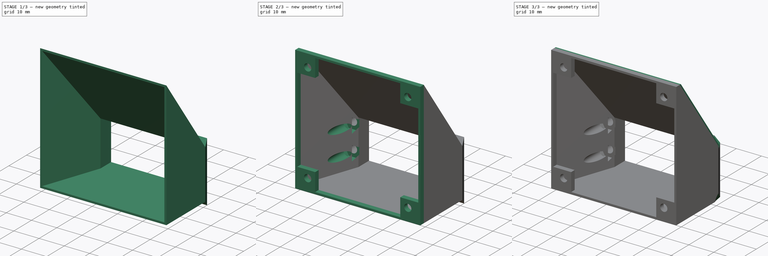
[diagram: build sequence overview — one tinted view per stage of 3, left to right]
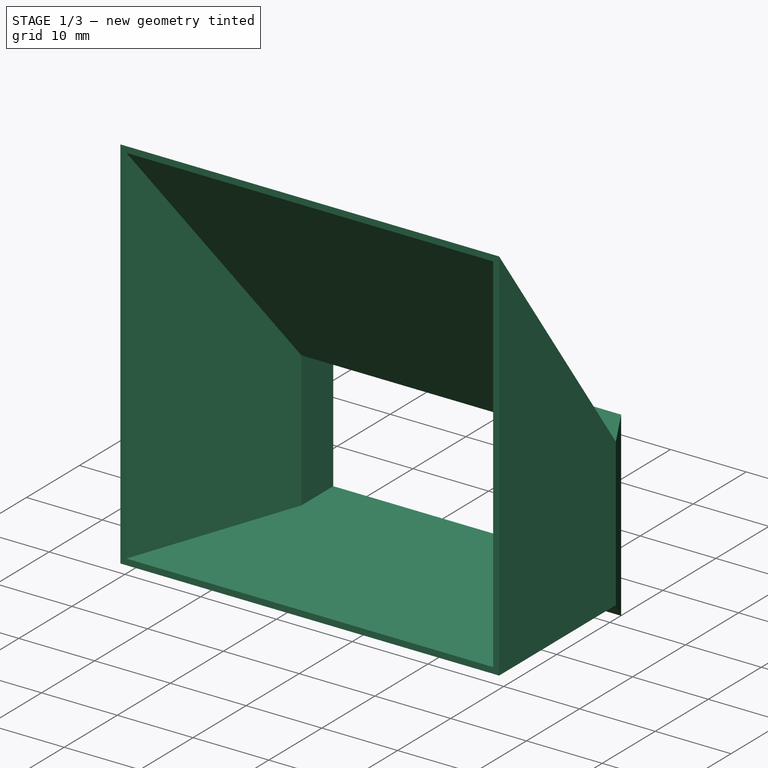
[diagram: stage 1 of 3 — iso view after this stage's code; geometry added in this stage tinted green]
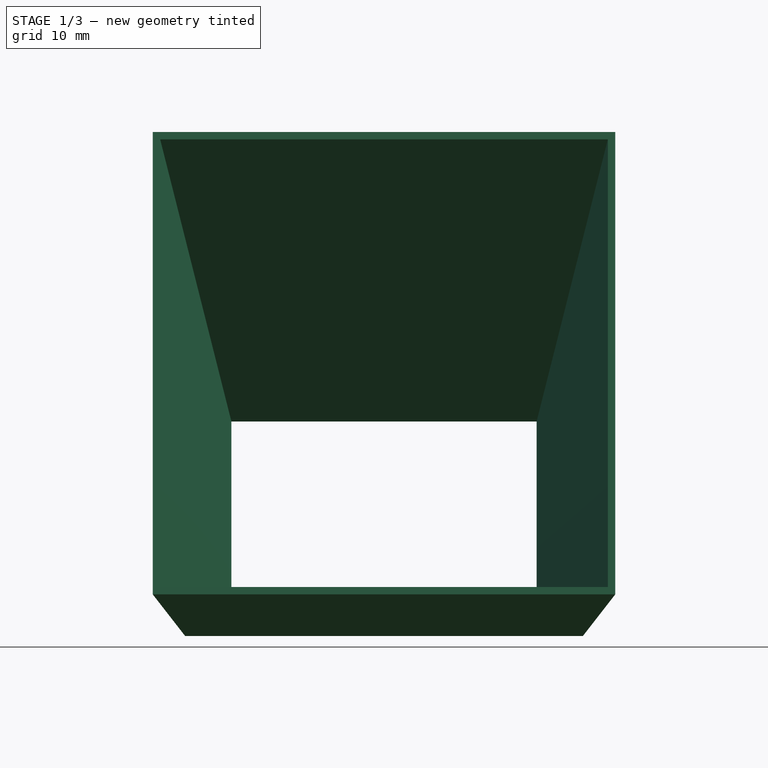
[diagram: stage 1 of 3 — front view after this stage's code; geometry added in this stage tinted green]
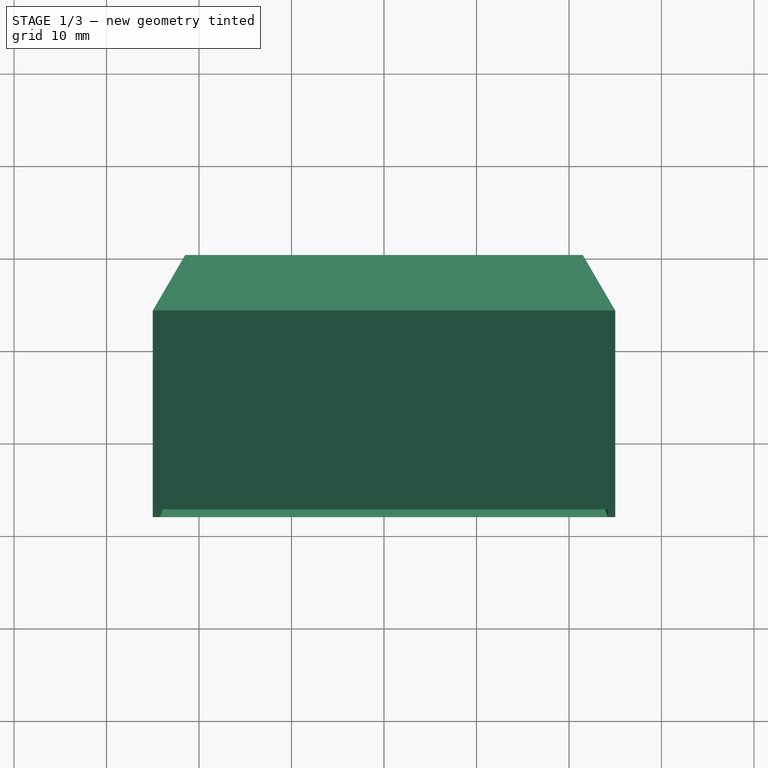
[diagram: stage 1 of 3 — top view after this stage's code; geometry added in this stage tinted green]
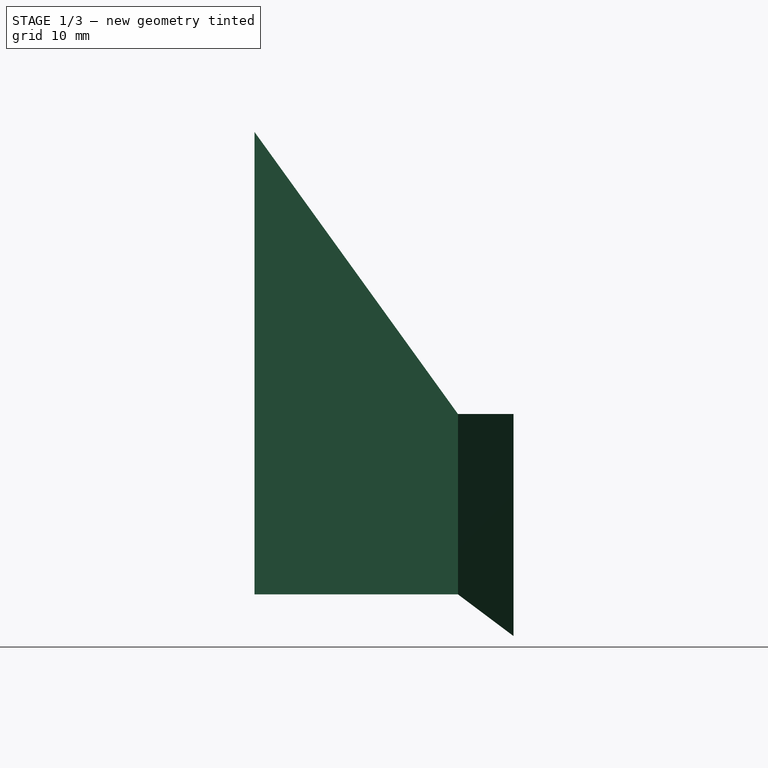
[diagram: stage 1 of 3 — right view after this stage's code; geometry added in this stage tinted green]
FCSTD DOCUMENT  (FreeCAD 0.18R14090 (Git))
Label: HotendClippingMainFan50x50_new
License: All rights reserved
LicenseURL: http://en.wikipedia.org/wiki/All_rights_reserved
objects: Sketcher::SketchObject×9, PartDesign::Plane×4, PartDesign::AdditiveLoft×3, PartDesign::Pocket×2, PartDesign::Pad×1, PartDesign::Chamfer×1, PartDesign::Body×1, App::Part×1
note: 27 computed .brp shape members not serialized (recipe doc carries the construction recipe); baked Part::Feature solids carry a one-line shape summary decoded from their .brp

FEATURE [Sketcher::SketchObject] Sketch  label="BaseSketch"
  MapMode = 5
  Placement = pos=(0,0,0) rot=(1,0,0;1.5708rad)
  Support = -> [XZ_Plane001]
  sketch-geometry (13):
    g0: LineSegment StartX=-16.5 StartY=8.95 StartZ=0 EndX=16.5 EndY=8.95 EndZ=0
    g1: LineSegment StartX=16.5 StartY=8.95 StartZ=0 EndX=16.5 EndY=-8.95 EndZ=0
    g2: LineSegment StartX=16.5 StartY=-8.95 StartZ=0 EndX=-16.5 EndY=-8.95 EndZ=0
    g3: LineSegment StartX=-16.5 StartY=-8.95 StartZ=0 EndX=-16.5 EndY=8.95 EndZ=0
    g4: Circle CenterX=-19 CenterY=6.75 CenterZ=0 NormalX=0 NormalY=0 NormalZ=1 AngleXU=0 Radius=1.6
    g5: Circle CenterX=-19 CenterY=-3.25 CenterZ=0 NormalX=0 NormalY=0 NormalZ=1 AngleXU=0 Radius=1.6
    g6: Circle CenterX=19 CenterY=6.75 CenterZ=0 NormalX=0 NormalY=0 NormalZ=1 AngleXU=0 Radius=1.6
    g7: Circle CenterX=19 CenterY=-3.25 CenterZ=0 NormalX=0 NormalY=0 NormalZ=1 AngleXU=0 Radius=1.6
    g8: LineSegment [constr] StartX=-19 StartY=6.75 StartZ=0 EndX=-19 EndY=-3.25 EndZ=0
    g9: LineSegment StartX=-21.5 StartY=9.75 StartZ=0 EndX=21.5 EndY=9.75 EndZ=0
    g10: LineSegment StartX=21.5 StartY=9.75 StartZ=0 EndX=21.5 EndY=-14.25 EndZ=0
    g11: LineSegment StartX=21.5 StartY=-14.25 StartZ=0 EndX=-21.5 EndY=-14.25 EndZ=0
    g12: LineSegment StartX=-21.5 StartY=-14.25 StartZ=0 EndX=-21.5 EndY=9.75 EndZ=0
  constraints (33):
    c: Coincident(g0,g1)
    c: Coincident(g1,g2)
    c: Coincident(g2,g3)
    c: Coincident(g3,g0)
    c: Horizontal(g2)
    c: Vertical(g1)
    c: Symmetric(g2,g0,g-1)
    c: Symmetric(g0,g0,g-2)
    c: Distance(g2) = 33
    c: Distance(g3) = 17.9
    c: Equal(g4,g6)
    c: Equal(g6,g7)
    c: Equal(g7,g5)
    c: Symmetric(g4,g6,g-2)
    c: Symmetric(g7,g5,g-2)
    c: Distance(g6,g4) = 38
    c: Coincident(g8,g4)
    c: Coincident(g8,g5)
    c: Vertical(g8)
    c: Distance(g8) = 10
    c: Coincident(g9,g10)
    c: Coincident(g10,g11)
    c: Coincident(g11,g12)
    c: Coincident(g12,g9)
    c: Horizontal(g11)
    c: Vertical(g10)
    c: Vertical(g12)
    c: Distance(g9) = 43
    c: Symmetric(g9,g9,g-2)
    c: Distance(g12) = 24
    c: Distance(g4,g9) = 3
    c: Distance(g0,g9) = 0.8
    c: Radius(g4) = 1.6
FEATURE [PartDesign::Plane] DatumPlane  label="Node1Plane"
  AttachmentOffset = pos=(0,0,6) rot=(0,0,1;0rad)
  MapMode = 5
  Placement = pos=(0,-6,-1e-12) rot=(1,0,0;1.5708rad)
  Support = -> [XZ_Plane001]
FEATURE [Sketcher::SketchObject] Sketch001  label="Node1Sketch"
  MapMode = 5
  Placement = pos=(0,-6,-1e-12) rot=(1,0,0;1.5708rad)
  Support = -> [DatumPlane]
  sketch-geometry (13):
    g0: LineSegment StartX=-16.5 StartY=8.95 StartZ=0 EndX=16.5 EndY=8.95 EndZ=0
    g1: LineSegment StartX=16.5 StartY=8.95 StartZ=0 EndX=16.5 EndY=-8.95 EndZ=0
    g2: LineSegment StartX=16.5 StartY=-8.95 StartZ=0 EndX=-16.5 EndY=-8.95 EndZ=0
    g3: LineSegment StartX=-16.5 StartY=-8.95 StartZ=0 EndX=-16.5 EndY=8.95 EndZ=0
    g4: Circle CenterX=-19 CenterY=6.75 CenterZ=0 NormalX=0 NormalY=0 NormalZ=1 AngleXU=0 Radius=1.6
    g5: Circle CenterX=-19 CenterY=-3.25 CenterZ=0 NormalX=0 NormalY=0 NormalZ=1 AngleXU=0 Radius=1.6
    g6: Circle CenterX=19 CenterY=6.75 CenterZ=0 NormalX=0 NormalY=0 NormalZ=1 AngleXU=0 Radius=1.6
    g7: Circle CenterX=19 CenterY=-3.25 CenterZ=0 NormalX=0 NormalY=0 NormalZ=1 AngleXU=0 Radius=1.6
    g8: LineSegment [constr] StartX=-19 StartY=6.75 StartZ=0 EndX=-19 EndY=-3.25 EndZ=0
    g9: LineSegment StartX=-25 StartY=9.75 StartZ=0 EndX=25 EndY=9.75 EndZ=0
    g10: LineSegment StartX=25 StartY=9.75 StartZ=0 EndX=25 EndY=-9.75 EndZ=0
    g11: LineSegment StartX=25 StartY=-9.75 StartZ=0 EndX=-25 EndY=-9.75 EndZ=0
    g12: LineSegment StartX=-25 StartY=-9.75 StartZ=0 EndX=-25 EndY=9.75 EndZ=0
  constraints (33):
    c: Coincident(g0,g1)
    c: Coincident(g1,g2)
    c: Coincident(g2,g3)
    c: Coincident(g3,g0)
    c: Horizontal(g2)
    c: Vertical(g1)
    c: Symmetric(g2,g0,g-1)
    c: Symmetric(g0,g0,g-2)
    c: Distance(g2) = 33
    c: Distance(g3) = 17.9
    c: Equal(g4,g6)
    c: Equal(g6,g7)
    c: Equal(g7,g5)
    c: Symmetric(g4,g6,g-2)
    c: Symmetric(g7,g5,g-2)
    c: Distance(g6,g4) = 38
    c: Coincident(g8,g4)
    c: Coincident(g8,g5)
    c: Vertical(g8)
    c: Distance(g8) = 10
    c: Coincident(g9,g10)
    c: Coincident(g10,g11)
    c: Coincident(g11,g12)
    c: Coincident(g12,g9)
    c: Horizontal(g11)
    c: Vertical(g10)
    c: Vertical(g12)
    c: Distance(g9) = 50
    c: Symmetric(g9,g9,g-2)
    c: Distance(g12) = 19.5
    c: Distance(g4,g9) = 3
    c: Distance(g0,g9) = 0.8
    c: Radius(g4) = 1.6
FEATURE [PartDesign::AdditiveLoft] AdditiveLoft  label="Node1Loft"
  Closed = false
  Placement = pos=(0,0,0) rot=(1,0,0;1.5708rad)
  Profile = -> Sketch
  Ruled = false
  Sections = -> [Sketch001]
FEATURE [Sketcher::SketchObject] Sketch003  label="Node2_1_Sketch"
  ExternalGeometry = -> [AdditiveLoft]
  MapMode = 5
  Placement = pos=(0,-6,-1e-12) rot=(1,0,0;1.5708rad)
  Support = -> [DatumPlane]
  sketch-geometry (8):
    g0: LineSegment StartX=-16.5 StartY=-8.95 StartZ=0 EndX=16.5 EndY=-8.95 EndZ=0
    g1: LineSegment StartX=-16.5 StartY=8.95 StartZ=0 EndX=16.5 EndY=8.95 EndZ=0
    g2: LineSegment StartX=16.5 StartY=8.95 StartZ=0 EndX=16.5 EndY=-8.95 EndZ=0
    g3: LineSegment StartX=-16.5 StartY=8.95 StartZ=0 EndX=-16.5 EndY=-8.95 EndZ=0
    g4: LineSegment StartX=-25 StartY=-9.75 StartZ=0 EndX=25 EndY=-9.75 EndZ=0
    g5: LineSegment StartX=-25 StartY=9.75 StartZ=0 EndX=25 EndY=9.75 EndZ=0
    g6: LineSegment StartX=25 StartY=9.75 StartZ=0 EndX=25 EndY=-9.75 EndZ=0
    g7: LineSegment StartX=-25 StartY=9.75 StartZ=0 EndX=-25 EndY=-9.75 EndZ=0
  constraints (18):
    c: Coincident(g0,g-4)
    c: Coincident(g0,g-4)
    c: Horizontal(g1)
    c: Symmetric(g1,g0,g-1)
    c: Coincident(g2,g1)
    c: Coincident(g2,g0)
    c: Vertical(g2)
    c: Coincident(g3,g1)
    c: Coincident(g3,g0)
    c: Coincident(g4,g-3)
    c: Coincident(g4,g-3)
    c: Horizontal(g5)
    c: Symmetric(g5,g4,g-1)
    c: Coincident(g6,g5)
    c: Coincident(g6,g4)
    c: Vertical(g6)
    c: Coincident(g7,g5)
    c: Coincident(g7,g4)
FEATURE [PartDesign::Plane] DatumPlane001  label="Node2Plane"
  AttachmentOffset = pos=(0,0,28) rot=(0,0,1;0rad)
  MapMode = 5
  Placement = pos=(0,-28,-3e-12) rot=(1,0,0;1.5708rad)
  Support = -> [XZ_Plane001]
FEATURE [Sketcher::SketchObject] Sketch004  label="Node2_2_Sketch"
  ExternalGeometry = -> [Sketch001]
  MapMode = 5
  Placement = pos=(0,-28,-3e-12) rot=(1,0,0;1.5708rad)
  Support = -> [DatumPlane001]
  sketch-geometry (8):
    g0: LineSegment StartX=-24.2 StartY=-8.95 StartZ=0 EndX=24.2 EndY=-8.95 EndZ=0
    g1: LineSegment StartX=-24.2 StartY=39.45 StartZ=0 EndX=24.2 EndY=39.45 EndZ=0
    g2: LineSegment StartX=24.2 StartY=39.45 StartZ=0 EndX=24.2 EndY=-8.95 EndZ=0
    g3: LineSegment StartX=-24.2 StartY=39.45 StartZ=0 EndX=-24.2 EndY=-8.95 EndZ=0
    g4: LineSegment StartX=-25 StartY=-9.75 StartZ=0 EndX=25 EndY=-9.75 EndZ=0
    g5: LineSegment StartX=-25 StartY=40.25 StartZ=0 EndX=25 EndY=40.25 EndZ=0
    g6: LineSegment StartX=25 StartY=40.25 StartZ=0 EndX=25 EndY=-9.75 EndZ=0
    g7: LineSegment StartX=-25 StartY=40.25 StartZ=0 EndX=-25 EndY=-9.75 EndZ=0
  constraints (21):
    c: Horizontal(g1)
    c: Coincident(g2,g1)
    c: Coincident(g2,g0)
    c: Vertical(g2)
    c: Coincident(g3,g1)
    c: Coincident(g3,g0)
    c: Horizontal(g5)
    c: Coincident(g6,g5)
    c: Coincident(g6,g4)
    c: Vertical(g6)
    c: Coincident(g7,g5)
    c: Coincident(g7,g4)
    c: Vertical(g7)
    c: Vertical(g3)
    c: Coincident(g4,g-4)
    c: Coincident(g4,g-4)
    c: PointOnObject(g0,g-3)
    c: Symmetric(g0,g0,g-2)
    c: Equal(g7,g4)
    c: Equal(g3,g0)
    c: Distance(g1,g5) = 0.8
FEATURE [PartDesign::AdditiveLoft] AdditiveLoft001  label="Node2Loft"
  BaseFeature = -> AdditiveLoft
  Closed = false
  Placement = pos=(0,0,0) rot=(1,0,0;1.5708rad)
  Profile = -> Sketch003
  Ruled = false
  Sections = -> [Sketch004]
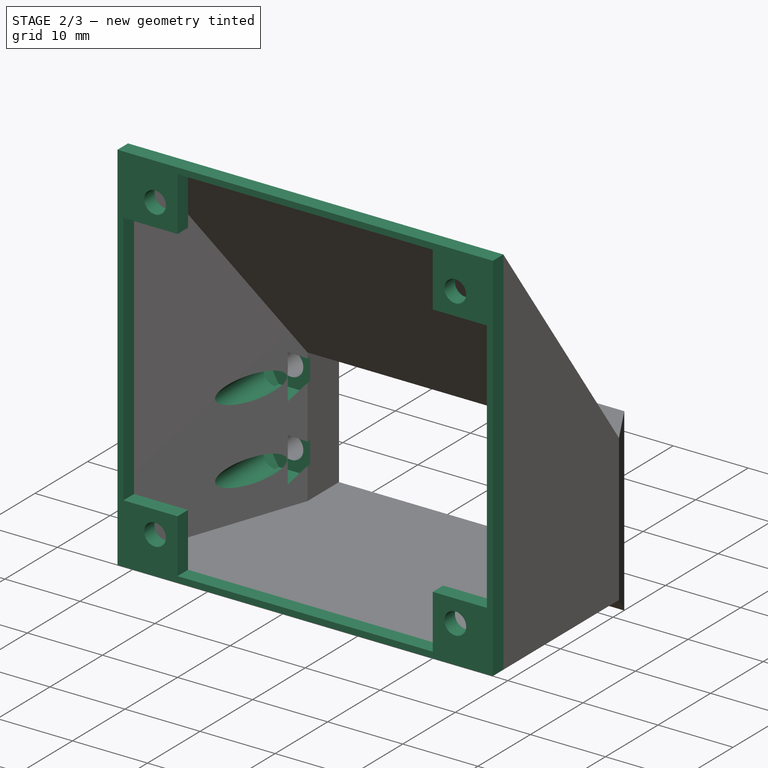
[diagram: stage 2 of 3 — iso view after this stage's code; geometry added in this stage tinted green]
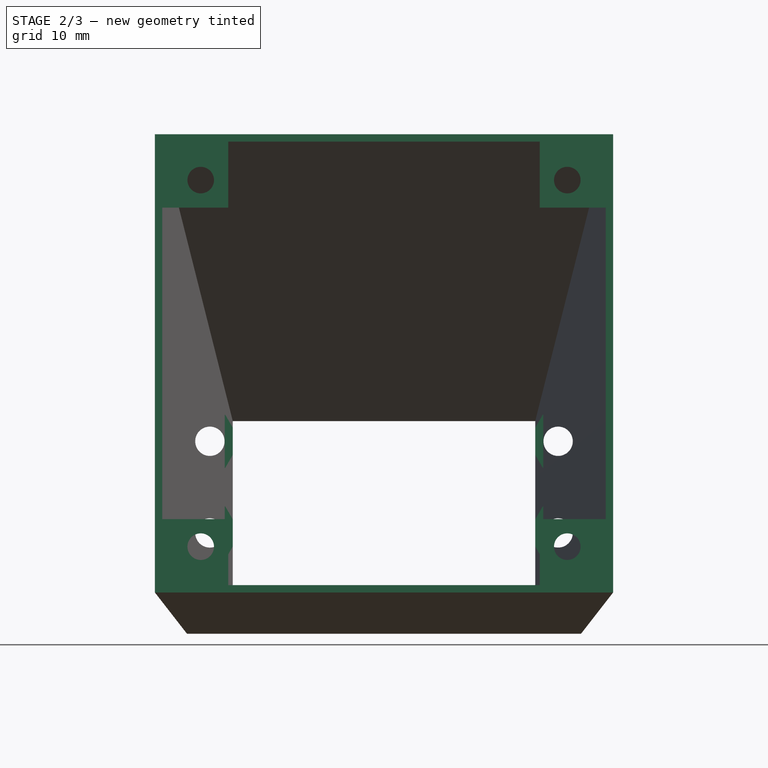
[diagram: stage 2 of 3 — front view after this stage's code; geometry added in this stage tinted green]
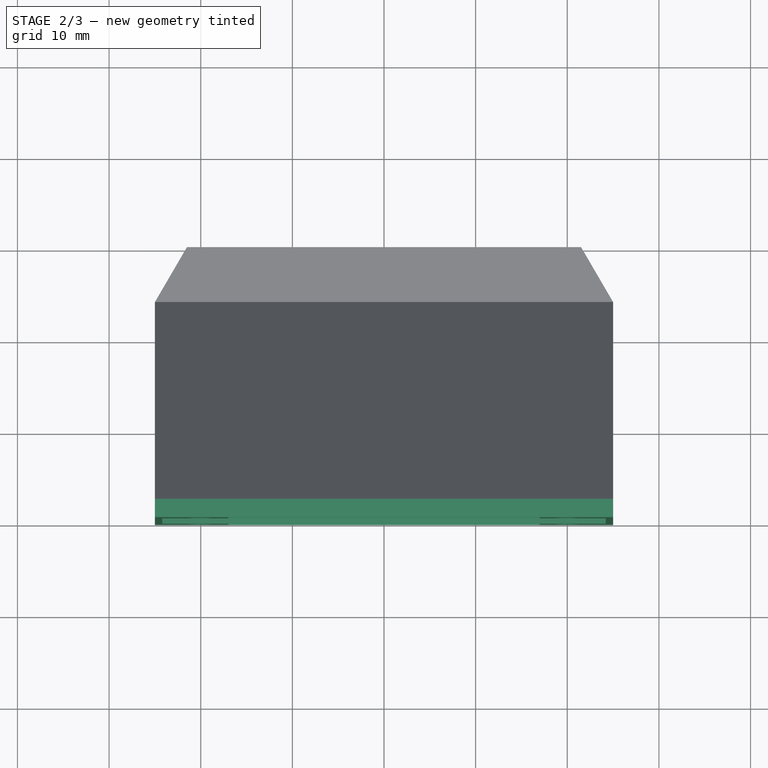
[diagram: stage 2 of 3 — top view after this stage's code; geometry added in this stage tinted green]
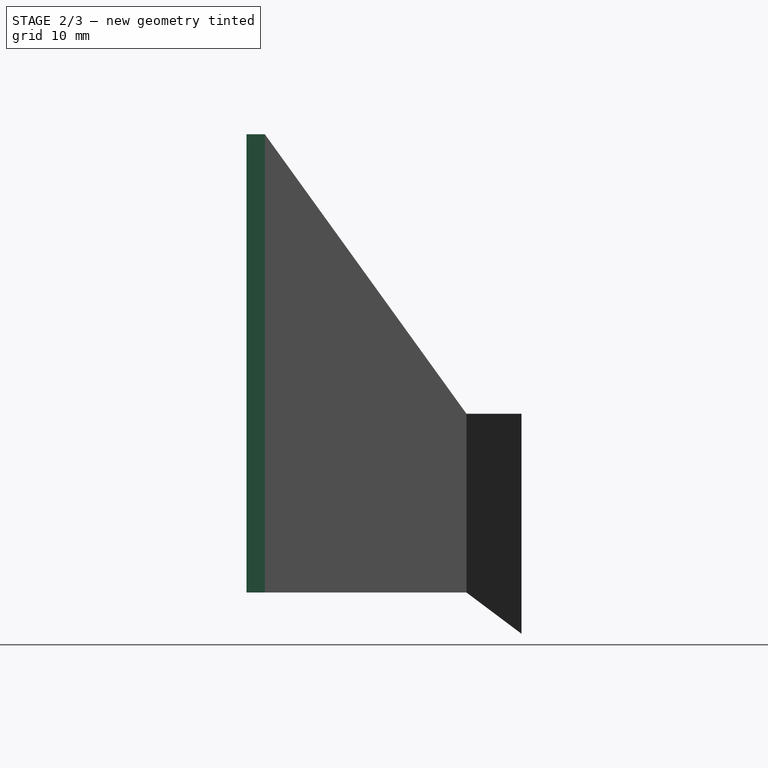
[diagram: stage 2 of 3 — right view after this stage's code; geometry added in this stage tinted green]
FEATURE [Sketcher::SketchObject] Sketch005  label="ScrewHolesSketch"
  ExternalGeometry = -> [Sketch001]
  MapMode = 5
  Placement = pos=(0,-6,-1e-12) rot=(1,0,0;1.5708rad)
  Support = -> [DatumPlane]
  sketch-geometry (4):
    g0: Circle CenterX=-19 CenterY=6.75 CenterZ=0 NormalX=0 NormalY=0 NormalZ=1 AngleXU=0 Radius=1.6
    g1: Circle CenterX=-19 CenterY=-3.25 CenterZ=0 NormalX=0 NormalY=0 NormalZ=1 AngleXU=0 Radius=1.6
    g2: Circle CenterX=19 CenterY=-3.25 CenterZ=0 NormalX=0 NormalY=0 NormalZ=1 AngleXU=0 Radius=1.6
    g3: Circle CenterX=19 CenterY=6.75 CenterZ=0 NormalX=0 NormalY=0 NormalZ=1 AngleXU=0 Radius=1.6
  constraints (8):
    c: Coincident(g0,g-3)
    c: Coincident(g1,g-4)
    c: Coincident(g2,g-5)
    c: Coincident(g3,g-6)
    c: Equal(g0,g-3)
    c: Equal(g1,g-4)
    c: Equal(g2,g-5)
    c: Equal(g3,g-6)
FEATURE [PartDesign::Pocket] Pocket  label="ScrewHolesPocket"
  BaseFeature = -> AdditiveLoft001
  Length = 5
  Length2 = 100
  Midplane = true
  Placement = pos=(0,0,0) rot=(1,0,0;1.5708rad)
  Profile = -> Sketch005
  Type = 1
FEATURE [PartDesign::Plane] DatumPlane002  label="NutsPlane"
  AttachmentOffset = pos=(0,0,7) rot=(0,0,1;0rad)
  MapMode = 5
  Placement = pos=(0,-7,-1e-12) rot=(1,0,0;1.5708rad)
  Support = -> [XZ_Plane001]
FEATURE [Sketcher::SketchObject] Sketch006  label="NutsSketch"
  ExternalGeometry = -> [Sketch001]
  MapMode = 5
  Placement = pos=(0,-7,-1e-12) rot=(1,0,0;1.5708rad)
  Support = -> [DatumPlane002]
  sketch-geometry (28):
    g0: LineSegment StartX=-20.6743 StartY=3.85 StartZ=0 EndX=-17.3257 EndY=3.85 EndZ=0
    g1: LineSegment StartX=-17.3257 StartY=3.85 StartZ=0 EndX=-15.6514 EndY=6.75 EndZ=0
    g2: LineSegment StartX=-15.6514 StartY=6.75 StartZ=0 EndX=-17.3257 EndY=9.65 EndZ=0
    g3: LineSegment StartX=-17.3257 StartY=9.65 StartZ=0 EndX=-20.6743 EndY=9.65 EndZ=0
    g4: LineSegment StartX=-20.6743 StartY=9.65 StartZ=0 EndX=-22.3486 EndY=6.75 EndZ=0
    g5: LineSegment StartX=-22.3486 StartY=6.75 StartZ=0 EndX=-20.6743 EndY=3.85 EndZ=0
    g6: Circle [constr] CenterX=-19 CenterY=6.75 CenterZ=0 NormalX=0 NormalY=0 NormalZ=1 AngleXU=0 Radius=3.34863
    g7: LineSegment StartX=-22.3486 StartY=-3.25 StartZ=0 EndX=-20.6743 EndY=-6.15 EndZ=0
    g8: LineSegment StartX=-20.6743 StartY=-6.15 StartZ=0 EndX=-17.3257 EndY=-6.15 EndZ=0
    g9: LineSegment StartX=-17.3257 StartY=-6.15 StartZ=0 EndX=-15.6514 EndY=-3.25 EndZ=0
    g10: LineSegment StartX=-15.6514 StartY=-3.25 StartZ=0 EndX=-17.3257 EndY=-0.35 EndZ=0
    g11: LineSegment StartX=-17.3257 StartY=-0.35 StartZ=0 EndX=-20.6743 EndY=-0.35 EndZ=0
    g12: LineSegment StartX=-20.6743 StartY=-0.35 StartZ=0 EndX=-22.3486 EndY=-3.25 EndZ=0
    g13: Circle [constr] CenterX=-19 CenterY=-3.25 CenterZ=0 NormalX=0 NormalY=0 NormalZ=1 AngleXU=0 Radius=3.34863
    g14: LineSegment StartX=22.3486 StartY=-3.25 StartZ=0 EndX=20.6743 EndY=-0.35 EndZ=0
    g15: LineSegment StartX=20.6743 StartY=-0.35 StartZ=0 EndX=17.3257 EndY=-0.35 EndZ=0
    g16: LineSegment StartX=17.3257 StartY=-0.35 StartZ=0 EndX=15.6514 EndY=-3.25 EndZ=0
    g17: LineSegment StartX=15.6514 StartY=-3.25 StartZ=0 EndX=17.3257 EndY=-6.15 EndZ=0
    g18: LineSegment StartX=17.3257 StartY=-6.15 StartZ=0 EndX=20.6743 EndY=-6.15 EndZ=0
    g19: LineSegment StartX=20.6743 StartY=-6.15 StartZ=0 EndX=22.3486 EndY=-3.25 EndZ=0
    g20: Circle [constr] CenterX=19 CenterY=-3.25 CenterZ=0 NormalX=0 NormalY=0 NormalZ=1 AngleXU=0 Radius=3.34863
    g21: LineSegment StartX=22.3486 StartY=6.75 StartZ=0 EndX=20.6743 EndY=9.65 EndZ=0
    g22: LineSegment StartX=20.6743 StartY=9.65 StartZ=0 EndX=17.3257 EndY=9.65 EndZ=0
    g23: LineSegment StartX=17.3257 StartY=9.65 StartZ=0 EndX=15.6514 EndY=6.75 EndZ=0
    g24: LineSegment StartX=15.6514 StartY=6.75 StartZ=0 EndX=17.3257 EndY=3.85 EndZ=0
    g25: LineSegment StartX=17.3257 StartY=3.85 StartZ=0 EndX=20.6743 EndY=3.85 EndZ=0
    g26: LineSegment StartX=20.6743 StartY=3.85 StartZ=0 EndX=22.3486 EndY=6.75 EndZ=0
    g27: Circle [constr] CenterX=19 CenterY=6.75 CenterZ=0 NormalX=0 NormalY=0 NormalZ=1 AngleXU=0 Radius=3.34863
  constraints (64):
    c: Coincident(g0,g1)
    c: Coincident(g1,g2)
    c: Coincident(g2,g3)
    c: Coincident(g3,g4)
    c: Coincident(g4,g5)
    c: Coincident(g5,g0)
    c: Equal(g0, g1-g5) x5
    c: PointOnObject(g0,g6)
    c: PointOnObject(g1,g6)
    c: PointOnObject(g2,g6)
    c: PointOnObject(g3,g6)
    c: PointOnObject(g4,g6)
    c: PointOnObject(g5,g6)
    c: Coincident(g6,g-3)
    c: Coincident(g7,g8)
    c: Coincident(g8,g9)
    c: Coincident(g9,g10)
    c: Coincident(g10,g11)
    c: Coincident(g11,g12)
    c: Coincident(g12,g7)
    c: Equal(g7, g8-g12) x5
    c: PointOnObject(g7,g13)
    c: PointOnObject(g8,g13)
    c: PointOnObject(g9,g13)
    c: PointOnObject(g10,g13)
    c: PointOnObject(g11,g13)
    c: PointOnObject(g12,g13)
    c: Coincident(g13,g-4)
    c: Coincident(g14,g15)
    c: Coincident(g15,g16)
    c: Coincident(g16,g17)
    c: Coincident(g17,g18)
    c: Coincident(g18,g19)
    c: Coincident(g19,g14)
    c: Equal(g14, g15-g19) x5
    c: PointOnObject(g14,g20)
    c: PointOnObject(g15,g20)
    c: PointOnObject(g16,g20)
    c: PointOnObject(g17,g20)
    c: PointOnObject(g18,g20)
    c: PointOnObject(g19,g20)
    c: Coincident(g20,g-5)
    c: Coincident(g21,g22)
    c: Coincident(g22,g23)
    c: Coincident(g23,g24)
    c: Coincident(g24,g25)
    c: Coincident(g25,g26)
    c: Coincident(g26,g21)
    c: Equal(g21, g22-g26) x5
    c: PointOnObject(g21,g27)
    c: PointOnObject(g22,g27)
    c: PointOnObject(g23,g27)
    c: PointOnObject(g24,g27)
    c: PointOnObject(g25,g27)
    c: PointOnObject(g26,g27)
    c: Coincident(g27,g-6)
    c: Horizontal(g22)
    c: Horizontal(g3)
    c: Horizontal(g11)
    c: Horizontal(g15)
    c: Equal(g3,g22)
    c: Equal(g22,g15)
    c: Equal(g15,g11)
    c: Distance(g3,g0) = 5.8
FEATURE [PartDesign::Pocket] Pocket001  label="NutsPocket"
  BaseFeature = -> Pocket
  Length = 3
  Length2 = 100
  Midplane = true
  Placement = pos=(0,0,0) rot=(1,0,0;1.5708rad)
  Profile = -> Sketch006
  Type = 0
FEATURE [Sketcher::SketchObject] Sketch007  label="FanClippingSketch_1"
  ExternalGeometry = -> [Sketch004]
  MapMode = 5
  Placement = pos=(0,-28,-3e-12) rot=(1,0,0;1.5708rad)
  Support = -> [DatumPlane001]
  sketch-geometry (36):
    g0: LineSegment StartX=-25 StartY=40.25 StartZ=0 EndX=25 EndY=40.25 EndZ=0
    g1: LineSegment StartX=25 StartY=40.25 StartZ=0 EndX=25 EndY=-9.75 EndZ=0
    g2: LineSegment StartX=25 StartY=-9.75 StartZ=0 EndX=-25 EndY=-9.75 EndZ=0
    g3: LineSegment StartX=-25 StartY=-9.75 StartZ=0 EndX=-25 EndY=40.25 EndZ=0
    g4: LineSegment StartX=-17 StartY=39.45 StartZ=0 EndX=17 EndY=39.45 EndZ=0
    g5: LineSegment StartX=24.2 StartY=32.25 StartZ=0 EndX=24.2 EndY=-1.75 EndZ=0
    g6: LineSegment StartX=17 StartY=-8.95 StartZ=0 EndX=-17 EndY=-8.95 EndZ=0
    g7: LineSegment StartX=-24.2 StartY=-1.75 StartZ=0 EndX=-24.2 EndY=32.25 EndZ=0
    g8: Circle CenterX=-20 CenterY=35.25 CenterZ=0 NormalX=0 NormalY=0 NormalZ=1 AngleXU=0 Radius=1.45
    g9: Circle CenterX=20 CenterY=35.25 CenterZ=0 NormalX=0 NormalY=0 NormalZ=1 AngleXU=0 Radius=1.45
    g10: Circle CenterX=20 CenterY=-4.75 CenterZ=0 NormalX=0 NormalY=0 NormalZ=1 AngleXU=0 Radius=1.45
    g11: Circle CenterX=-20 CenterY=-4.75 CenterZ=0 NormalX=0 NormalY=0 NormalZ=1 AngleXU=0 Radius=1.45
    g12: LineSegment [constr] StartX=-20 StartY=35.25 StartZ=0 EndX=-20 EndY=40.25 EndZ=0
    g13: LineSegment [constr] StartX=-20 StartY=35.25 StartZ=0 EndX=-25 EndY=35.25 EndZ=0
    g14: LineSegment [constr] StartX=20 StartY=35.25 StartZ=0 EndX=20 EndY=40.25 EndZ=0
    g15: LineSegment [constr] StartX=20 StartY=35.25 StartZ=0 EndX=25 EndY=35.25 EndZ=0
    g16: LineSegment [constr] StartX=20 StartY=-4.75 StartZ=0 EndX=25 EndY=-4.75 EndZ=0
    g17: LineSegment [constr] StartX=20 StartY=-4.75 StartZ=0 EndX=20 EndY=-9.75 EndZ=0
    g18: LineSegment [constr] StartX=-20 StartY=-4.75 StartZ=0 EndX=-25 EndY=-4.75 EndZ=0
    g19: LineSegment [constr] StartX=-20 StartY=-4.75 StartZ=0 EndX=-20 EndY=-9.75 EndZ=0
    g20: LineSegment [constr] StartX=-24.2 StartY=-1.75 StartZ=0 EndX=-25 EndY=-1.75 EndZ=0
    g21: LineSegment [constr] StartX=17 StartY=-8.95 StartZ=0 EndX=17 EndY=-9.75 EndZ=0
    g22: LineSegment [constr] StartX=24.2 StartY=32.25 StartZ=0 EndX=25 EndY=32.25 EndZ=0
    g23: LineSegment [constr] StartX=-17 StartY=39.45 StartZ=0 EndX=-17 EndY=40.25 EndZ=0
    g24: LineSegment StartX=-24.2 StartY=-1.75 StartZ=0 EndX=-17 EndY=-1.75 EndZ=0
    g25: LineSegment StartX=-17 StartY=-1.75 StartZ=0 EndX=-17 EndY=-8.95 EndZ=0
    g26: LineSegment StartX=-24.2 StartY=32.25 StartZ=0 EndX=-17 EndY=32.25 EndZ=0
    g27: LineSegment StartX=-17 StartY=32.25 StartZ=0 EndX=-17 EndY=39.45 EndZ=0
    g28: LineSegment StartX=24.2 StartY=32.25 StartZ=0 EndX=17 EndY=32.25 EndZ=0
    g29: LineSegment StartX=17 StartY=32.25 StartZ=0 EndX=17 EndY=39.45 EndZ=0
    g30: LineSegment StartX=17 StartY=-8.95 StartZ=0 EndX=17 EndY=-1.75 EndZ=0
    g31: LineSegment StartX=24.2 StartY=-1.75 StartZ=0 EndX=17 EndY=-1.75 EndZ=0
    g32: LineSegment [constr] StartX=-20 StartY=-4.75 StartZ=0 EndX=-20 EndY=-1.75 EndZ=0
    g33: LineSegment [constr] StartX=20 StartY=-4.75 StartZ=0 EndX=20 EndY=-1.75 EndZ=0
    g34: LineSegment [constr] StartX=20 StartY=35.25 StartZ=0 EndX=20 EndY=32.25 EndZ=0
    g35: LineSegment [constr] StartX=-20 StartY=35.25 StartZ=0 EndX=-20 EndY=32.25 EndZ=0
  constraints (104):
    c: Coincident(g0,g-3)
    c: Coincident(g0,g-4)
    c: Coincident(g1,g0)
    c: Coincident(g1,g-5)
    c: Coincident(g2,g1)
    c: Coincident(g2,g-6)
    c: Coincident(g3,g2)
    c: Coincident(g3,g0)
    c: Horizontal(g4)
    c: Vertical(g5)
    c: Horizontal(g6)
    c: Vertical(g7)
    c: Equal(g11,g8)
    c: Equal(g8,g9)
    c: Equal(g9,g10)
    c: Coincident(g12,g8)
    c: PointOnObject(g12,g0)
    c: Vertical(g12)
    c: Coincident(g13,g8)
    c: PointOnObject(g13,g3)
    c: Horizontal(g13)
    c: Coincident(g14,g9)
    c: PointOnObject(g14,g0)
    c: Vertical(g14)
    c: Coincident(g15,g9)
    c: PointOnObject(g15,g1)
    c: Horizontal(g15)
    c: Coincident(g16,g10)
    c: PointOnObject(g16,g1)
    c: Horizontal(g16)
    c: Coincident(g17,g10)
    c: PointOnObject(g17,g2)
    c: Vertical(g17)
    c: Coincident(g18,g11)
    c: PointOnObject(g18,g3)
    c: Horizontal(g18)
    c: Coincident(g19,g11)
    c: PointOnObject(g19,g2)
    c: Vertical(g19)
    c: Equal(g19,g18)
    c: Equal(g18,g17)
    c: Equal(g17,g16)
    c: Equal(g16,g15)
    c: Equal(g15,g14)
    c: Equal(g14,g12)
    c: Equal(g12,g13)
    c: Distance(g13) = 5
    c: Coincident(g20,g7)
    c: PointOnObject(g20,g3)
    c: Horizontal(g20)
    c: Coincident(g21,g6)
    c: PointOnObject(g21,g2)
    c: Vertical(g21)
    c: Coincident(g22,g5)
    c: PointOnObject(g22,g1)
    c: Horizontal(g22)
    c: Coincident(g23,g4)
    c: PointOnObject(g23,g0)
    c: Vertical(g23)
    c: Equal(g23,g22)
    c: Equal(g22,g21)
    c: Equal(g21,g20)
    c: Distance(g20) = 0.8
    c: Coincident(g24,g7)
    c: Horizontal(g24)
    c: Coincident(g25,g24)
    c: Coincident(g25,g6)
    c: Vertical(g25)
    c: Coincident(g26,g7)
    c: Horizontal(g26)
    c: Coincident(g27,g26)
    c: Coincident(g27,g4)
    c: Vertical(g27)
    c: Coincident(g28,g5)
    c: Horizontal(g28)
    c: Coincident(g29,g28)
    c: Coincident(g29,g4)
    c: Vertical(g29)
    c: Coincident(g30,g6)
    c: Vertical(g30)
    c: Coincident(g31,g5)
    c: Coincident(g31,g30)
    c: Horizontal(g31)
    c: Equal(g24,g25)
    c: Equal(g25,g30)
    c: Equal(g30,g31)
    c: Equal(g31,g28)
    c: Equal(g28,g29)
    c: Equal(g29,g27)
    c: Equal(g27,g26)
    c: Coincident(g32,g11)
    c: PointOnObject(g32,g24)
    c: Vertical(g32)
    c: Coincident(g33,g10)
    c: Vertical(g33)
    c: Coincident(g34,g9)
    c: Vertical(g34)
    c: Coincident(g35,g8)
    c: Vertical(g35)
    c: Equal(g35,g34)
    c: Equal(g34,g33)
    c: Equal(g33,g32)
    c: Distance(g32) = 3
    c: Radius(g11) = 1.45
FEATURE [PartDesign::Plane] DatumPlane003  label="Node3Plane"
  AttachmentOffset = pos=(0,0,30) rot=(0,0,1;0rad)
  MapMode = 5
  Placement = pos=(0,-30,-3e-12) rot=(1,0,0;1.5708rad)
  Support = -> [XZ_Plane001]
FEATURE [Sketcher::SketchObject] Sketch008  label="FanClippingSketch_2"
  ExternalGeometry = -> [Sketch004]
  MapMode = 5
  Placement = pos=(0,-30,-3e-12) rot=(1,0,0;1.5708rad)
  Support = -> [DatumPlane003]
  sketch-geometry (36):
    g0: LineSegment StartX=-25 StartY=40.25 StartZ=0 EndX=25 EndY=40.25 EndZ=0
    g1: LineSegment StartX=25 StartY=40.25 StartZ=0 EndX=25 EndY=-9.75 EndZ=0
    g2: LineSegment StartX=25 StartY=-9.75 StartZ=0 EndX=-25 EndY=-9.75 EndZ=0
    g3: LineSegment StartX=-25 StartY=-9.75 StartZ=0 EndX=-25 EndY=40.25 EndZ=0
    g4: LineSegment StartX=-17 StartY=39.45 StartZ=0 EndX=17 EndY=39.45 EndZ=0
    g5: LineSegment StartX=24.2 StartY=32.25 StartZ=0 EndX=24.2 EndY=-1.75 EndZ=0
    g6: LineSegment StartX=17 StartY=-8.95 StartZ=0 EndX=-17 EndY=-8.95 EndZ=0
    g7: LineSegment StartX=-24.2 StartY=-1.75 StartZ=0 EndX=-24.2 EndY=32.25 EndZ=0
    g8: Circle CenterX=-20 CenterY=35.25 CenterZ=0 NormalX=0 NormalY=0 NormalZ=1 AngleXU=0 Radius=1.45
    g9: Circle CenterX=20 CenterY=35.25 CenterZ=0 NormalX=0 NormalY=0 NormalZ=1 AngleXU=0 Radius=1.45
    g10: Circle CenterX=20 CenterY=-4.75 CenterZ=0 NormalX=0 NormalY=0 NormalZ=1 AngleXU=0 Radius=1.45
    g11: Circle CenterX=-20 CenterY=-4.75 CenterZ=0 NormalX=0 NormalY=0 NormalZ=1 AngleXU=0 Radius=1.45
    g12: LineSegment [constr] StartX=-20 StartY=35.25 StartZ=0 EndX=-20 EndY=40.25 EndZ=0
    g13: LineSegment [constr] StartX=-20 StartY=35.25 StartZ=0 EndX=-25 EndY=35.25 EndZ=0
    g14: LineSegment [constr] StartX=20 StartY=35.25 StartZ=0 EndX=20 EndY=40.25 EndZ=0
    g15: LineSegment [constr] StartX=20 StartY=35.25 StartZ=0 EndX=25 EndY=35.25 EndZ=0
    g16: LineSegment [constr] StartX=20 StartY=-4.75 StartZ=0 EndX=25 EndY=-4.75 EndZ=0
    g17: LineSegment [constr] StartX=20 StartY=-4.75 StartZ=0 EndX=20 EndY=-9.75 EndZ=0
    g18: LineSegment [constr] StartX=-20 StartY=-4.75 StartZ=0 EndX=-25 EndY=-4.75 EndZ=0
    g19: LineSegment [constr] StartX=-20 StartY=-4.75 StartZ=0 EndX=-20 EndY=-9.75 EndZ=0
    g20: LineSegment [constr] StartX=-24.2 StartY=-1.75 StartZ=0 EndX=-25 EndY=-1.75 EndZ=0
    g21: LineSegment [constr] StartX=17 StartY=-8.95 StartZ=0 EndX=17 EndY=-9.75 EndZ=0
    g22: LineSegment [constr] StartX=24.2 StartY=32.25 StartZ=0 EndX=25 EndY=32.25 EndZ=0
    g23: LineSegment [constr] StartX=-17 StartY=39.45 StartZ=0 EndX=-17 EndY=40.25 EndZ=0
    g24: LineSegment StartX=-24.2 StartY=-1.75 StartZ=0 EndX=-17 EndY=-1.75 EndZ=0
    g25: LineSegment StartX=-17 StartY=-1.75 StartZ=0 EndX=-17 EndY=-8.95 EndZ=0
    g26: LineSegment StartX=-24.2 StartY=32.25 StartZ=0 EndX=-17 EndY=32.25 EndZ=0
    g27: LineSegment StartX=-17 StartY=32.25 StartZ=0 EndX=-17 EndY=39.45 EndZ=0
    g28: LineSegment StartX=24.2 StartY=32.25 StartZ=0 EndX=17 EndY=32.25 EndZ=0
    g29: LineSegment StartX=17 StartY=32.25 StartZ=0 EndX=17 EndY=39.45 EndZ=0
    g30: LineSegment StartX=17 StartY=-8.95 StartZ=0 EndX=17 EndY=-1.75 EndZ=0
    g31: LineSegment StartX=24.2 StartY=-1.75 StartZ=0 EndX=17 EndY=-1.75 EndZ=0
    g32: LineSegment [constr] StartX=-20 StartY=-4.75 StartZ=0 EndX=-20 EndY=-1.75 EndZ=0
    g33: LineSegment [constr] StartX=20 StartY=-4.75 StartZ=0 EndX=20 EndY=-1.75 EndZ=0
    g34: LineSegment [constr] StartX=20 StartY=35.25 StartZ=0 EndX=20 EndY=32.25 EndZ=0
    g35: LineSegment [constr] StartX=-20 StartY=35.25 StartZ=0 EndX=-20 EndY=32.25 EndZ=0
  constraints (104):
    c: Coincident(g0,g-3)
    c: Coincident(g0,g-4)
    c: Coincident(g1,g0)
    c: Coincident(g1,g-5)
    c: Coincident(g2,g1)
    c: Coincident(g2,g-6)
    c: Coincident(g3,g2)
    c: Coincident(g3,g0)
    c: Horizontal(g4)
    c: Vertical(g5)
    c: Horizontal(g6)
    c: Vertical(g7)
    c: Equal(g11,g8)
    c: Equal(g8,g9)
    c: Equal(g9,g10)
    c: Coincident(g12,g8)
    c: PointOnObject(g12,g0)
    c: Vertical(g12)
    c: Coincident(g13,g8)
    c: PointOnObject(g13,g3)
    c: Horizontal(g13)
    c: Coincident(g14,g9)
    c: PointOnObject(g14,g0)
    c: Vertical(g14)
    c: Coincident(g15,g9)
    c: PointOnObject(g15,g1)
    c: Horizontal(g15)
    c: Coincident(g16,g10)
    c: PointOnObject(g16,g1)
    c: Horizontal(g16)
    c: Coincident(g17,g10)
    c: PointOnObject(g17,g2)
    c: Vertical(g17)
    c: Coincident(g18,g11)
    c: PointOnObject(g18,g3)
    c: Horizontal(g18)
    c: Coincident(g19,g11)
    c: PointOnObject(g19,g2)
    c: Vertical(g19)
    c: Equal(g19,g18)
    c: Equal(g18,g17)
    c: Equal(g17,g16)
    c: Equal(g16,g15)
    c: Equal(g15,g14)
    c: Equal(g14,g12)
    c: Equal(g12,g13)
    c: Distance(g13) = 5
    c: Coincident(g20,g7)
    c: PointOnObject(g20,g3)
    c: Horizontal(g20)
    c: Coincident(g21,g6)
    c: PointOnObject(g21,g2)
    c: Vertical(g21)
    c: Coincident(g22,g5)
    c: PointOnObject(g22,g1)
    c: Horizontal(g22)
    c: Coincident(g23,g4)
    c: PointOnObject(g23,g0)
    c: Vertical(g23)
    c: Equal(g23,g22)
    c: Equal(g22,g21)
    c: Equal(g21,g20)
    c: Distance(g20) = 0.8
    c: Coincident(g24,g7)
    c: Horizontal(g24)
    c: Coincident(g25,g24)
    c: Coincident(g25,g6)
    c: Vertical(g25)
    c: Coincident(g26,g7)
    c: Horizontal(g26)
    c: Coincident(g27,g26)
    c: Coincident(g27,g4)
    c: Vertical(g27)
    c: Coincident(g28,g5)
    c: Horizontal(g28)
    c: Coincident(g29,g28)
    c: Coincident(g29,g4)
    c: Vertical(g29)
    c: Coincident(g30,g6)
    c: Vertical(g30)
    c: Coincident(g31,g5)
    c: Coincident(g31,g30)
    c: Horizontal(g31)
    c: Equal(g24,g25)
    c: Equal(g25,g30)
    c: Equal(g30,g31)
    c: Equal(g31,g28)
    c: Equal(g28,g29)
    c: Equal(g29,g27)
    c: Equal(g27,g26)
    c: Coincident(g32,g11)
    c: PointOnObject(g32,g24)
    c: Vertical(g32)
    c: Coincident(g33,g10)
    c: Vertical(g33)
    c: Coincident(g34,g9)
    c: Vertical(g34)
    c: Coincident(g35,g8)
    c: Vertical(g35)
    c: Equal(g35,g34)
    c: Equal(g34,g33)
    c: Equal(g33,g32)
    c: Distance(g32) = 3
    c: Radius(g11) = 1.45
FEATURE [PartDesign::AdditiveLoft] AdditiveLoft002  label="Node3Loft"
  BaseFeature = -> Pocket001
  Closed = false
  Placement = pos=(0,0,0) rot=(1,0,0;1.5708rad)
  Profile = -> Sketch007
  Ruled = false
  Sections = -> [Sketch008]
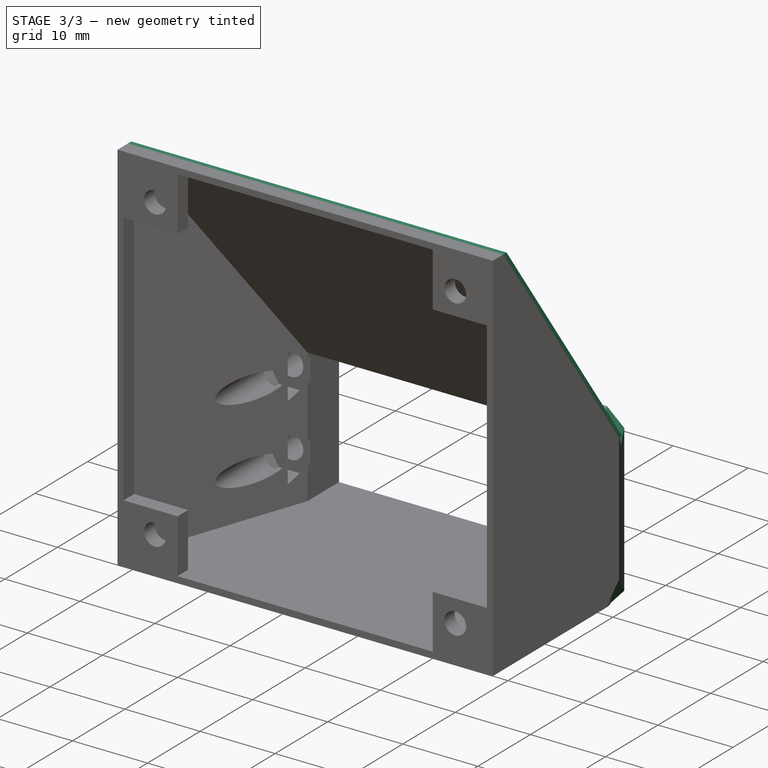
[diagram: stage 3 of 3 — iso view after this stage's code; geometry added in this stage tinted green]
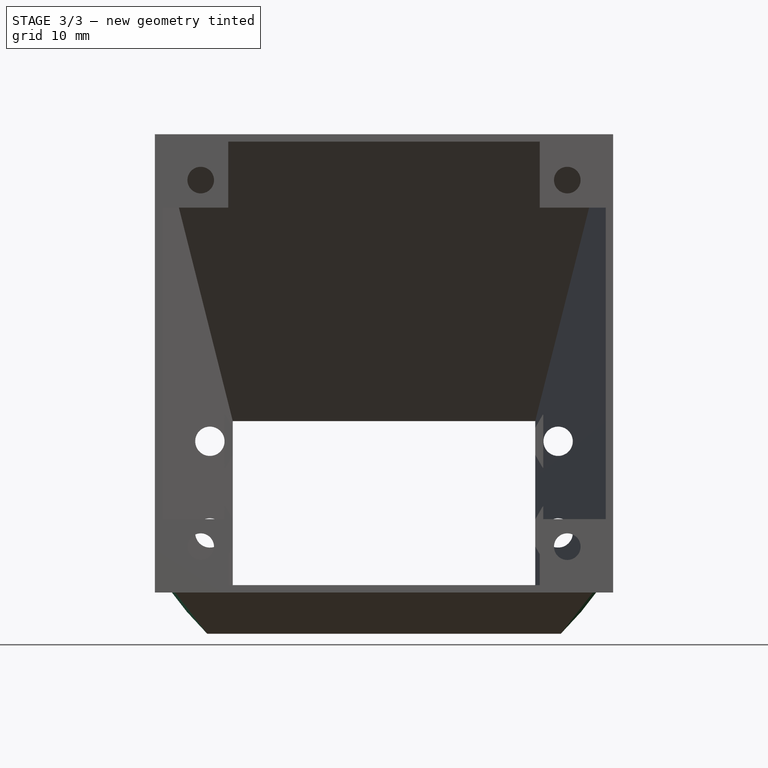
[diagram: stage 3 of 3 — front view after this stage's code; geometry added in this stage tinted green]
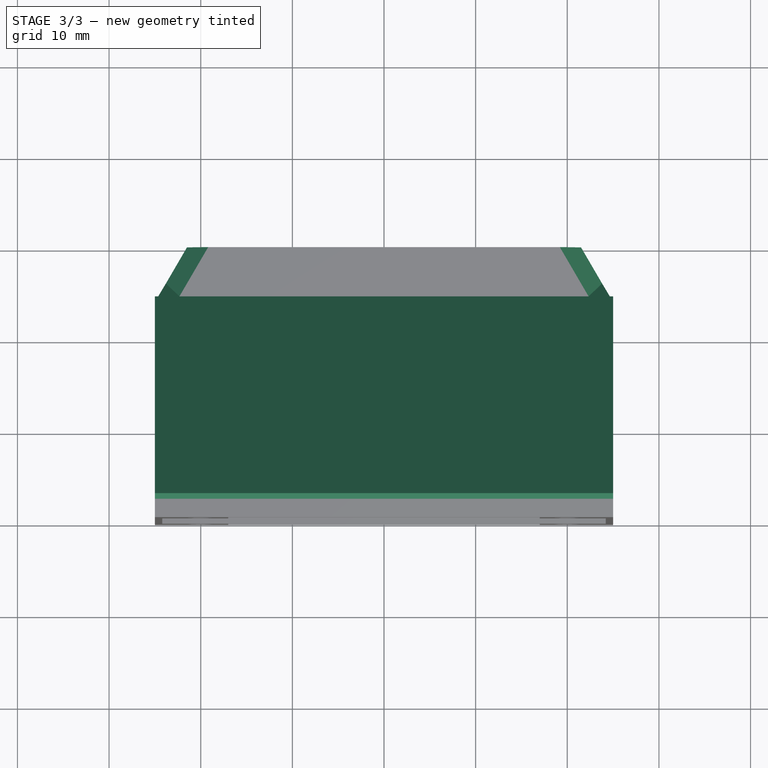
[diagram: stage 3 of 3 — top view after this stage's code; geometry added in this stage tinted green]
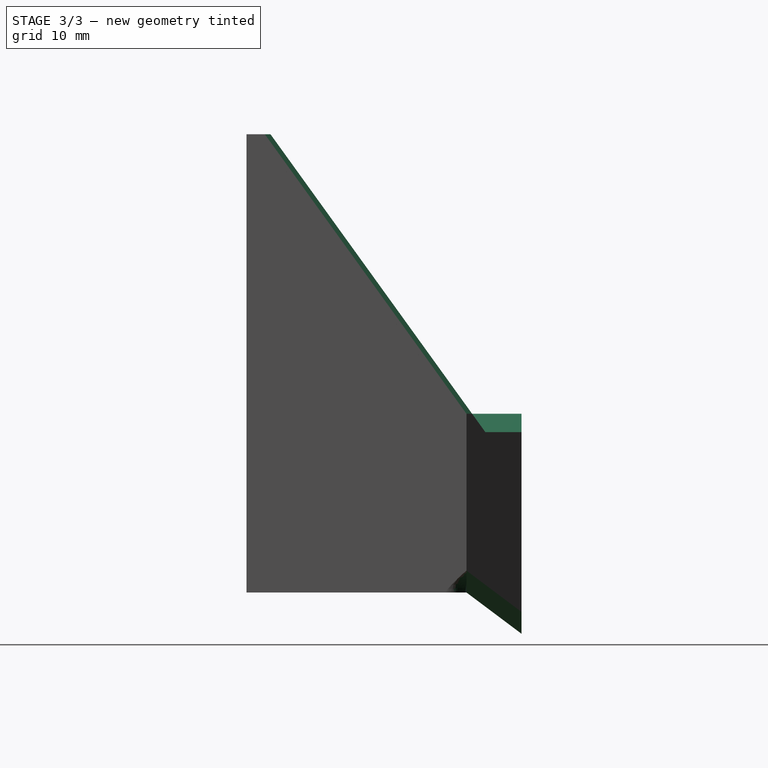
[diagram: stage 3 of 3 — right view after this stage's code; geometry added in this stage tinted green]
FEATURE [Sketcher::SketchObject] Sketch009  label="WallStiffenerSketch"
  ExternalGeometry = -> [Sketch007,Sketch003]
  MapMode = 5
  Placement = pos=(0,0,0) rot=(0.57735,0.57735,0.57735;2.0944rad)
  Support = -> [YZ_Plane001]
  sketch-geometry (4):
    g0: LineSegment StartX=-28 StartY=40.25 StartZ=0 EndX=-6 EndY=9.75 EndZ=0
    g1: LineSegment StartX=-6 StartY=9.75 StartZ=0 EndX=-5.3835 EndY=9.75 EndZ=0
    g2: LineSegment StartX=-28 StartY=40.25 StartZ=0 EndX=-27.3835 EndY=40.25 EndZ=0
    g3: LineSegment StartX=-27.3835 StartY=40.25 StartZ=0 EndX=-5.3835 EndY=9.75 EndZ=0
  constraints (10):
    c: Coincident(g1,g0)
    c: Horizontal(g1)
    c: Coincident(g2,g0)
    c: Horizontal(g2)
    c: Coincident(g3,g2)
    c: Coincident(g3,g1)
    c: Equal(g1,g2)
    c: Distance(g2,g0) = 0.5
    c: Coincident(g0,g-3)
    c: Coincident(g0,g-4)
FEATURE [PartDesign::Pad] Pad  label="WallStiffenerPad"
  BaseFeature = -> AdditiveLoft002
  Length = 50
  Length2 = 100
  Midplane = true
  Placement = pos=(0,0,0) rot=(1,0,0;1.5708rad)
  Profile = -> Sketch009
  Type = 0
FEATURE [PartDesign::Chamfer] Chamfer  label="CornerChamfer"
  Base = -> Pad [Edge15,Edge13,Edge19,Edge16]
  BaseFeature = -> Pad
  Placement = pos=(0,0,0) rot=(1,0,0;1.5708rad)
  Size = 2
FEATURE [PartDesign::Body] Body  label="FanClippingBody"
  Group = -> [Sketch,DatumPlane,Sketch001,AdditiveLoft,Sketch003,DatumPlane001,Sketch004,AdditiveLoft001,Sketch005,Pocket,Sketch006,DatumPlane002,Pocket001,Sketch007,DatumPlane003,Sketch008,AdditiveLoft002,Sketch009,Pad,Chamfer]
  Origin = -> Origin001
  Tip = -> Chamfer
FEATURE [App::Part] Part  label="FanClippingPart"
  Group = -> [Body]
  License = CC BY 3.0
  LicenseURL = http://creativecommons.org/licenses/by/3.0/
  Origin = -> Origin
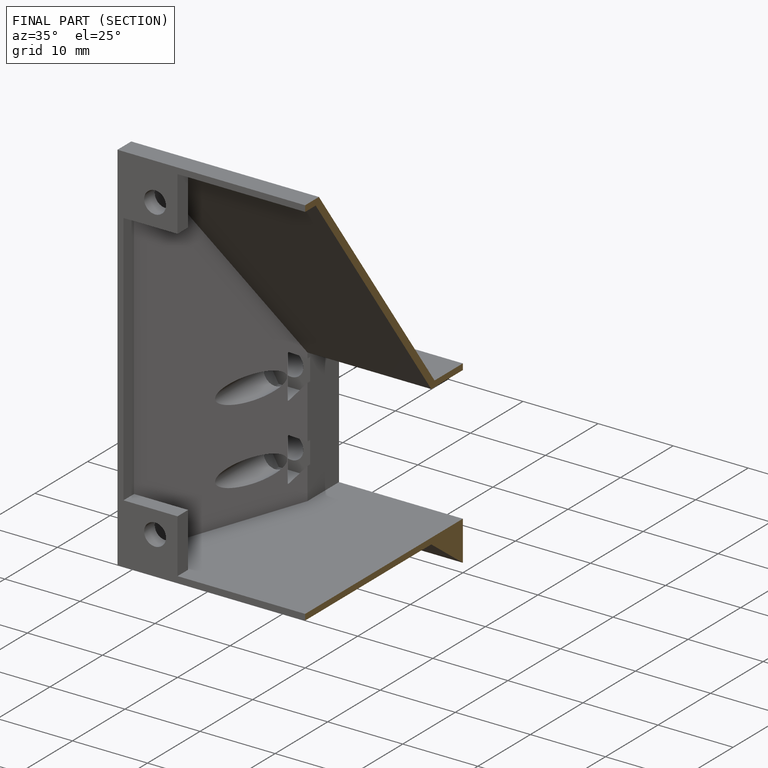
[diagram: finished part — half-section view (interior)]
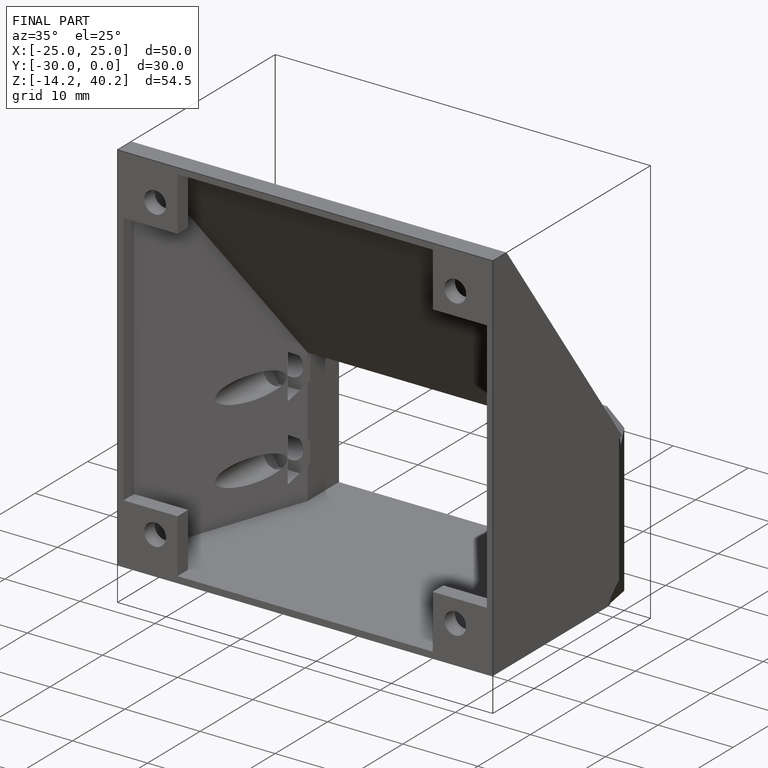
[diagram: finished part — iso view with bounding-box wireframe]
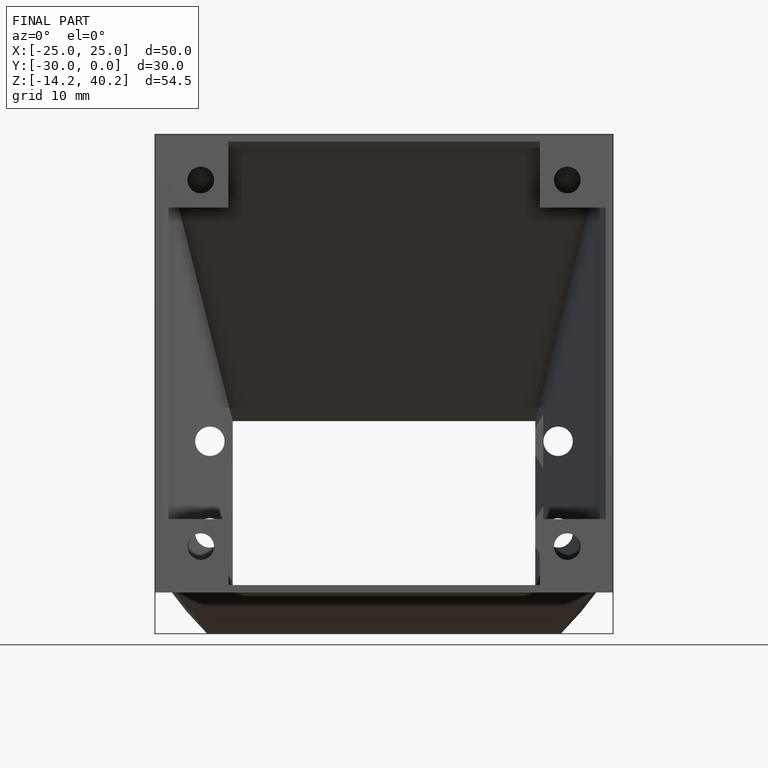
[diagram: finished part — front view with bounding-box wireframe]
